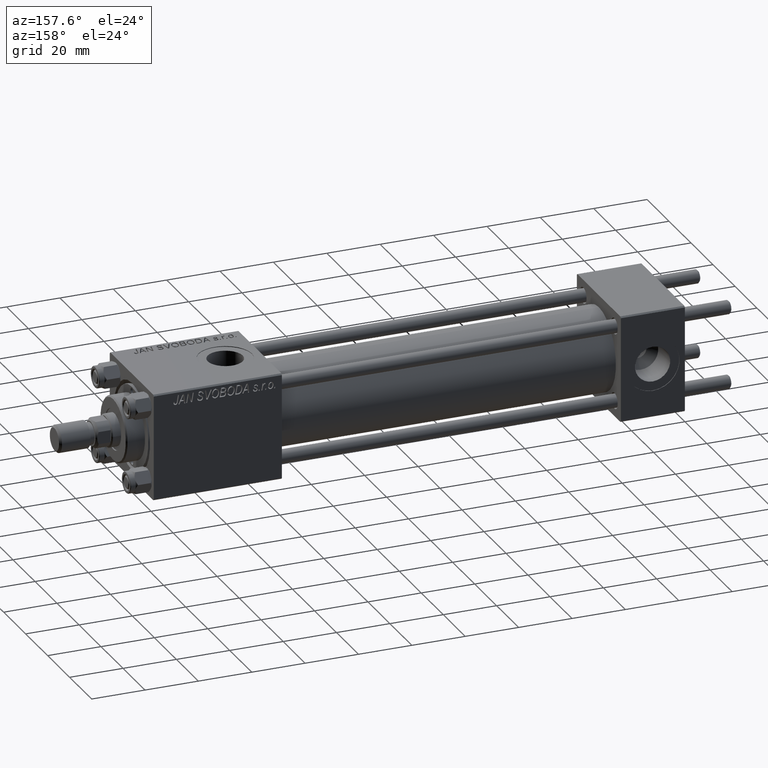
[diagram: clean part render]
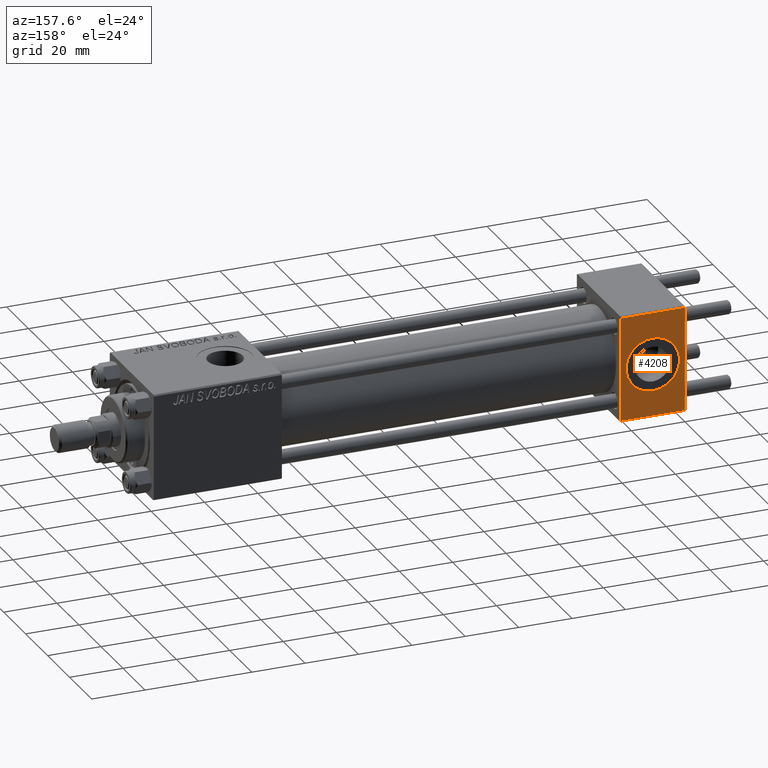
[diagram: same view with one face highlighted and labeled with its STEP entity id]
A machine part, auxiliary view. The second image highlights one B-rep face of the part: STEP entity #4208.
In plain terms, the highlighted planar face has unit normal (0, 1, 0).
Its self-contained STEP definition (entity closure, byte-faithful):
#318 = DIRECTION ( 'NONE',  ( -1.000000000000000000, 0.000000000000000000, 0.000000000000000000 ) ) ;
#347 = VERTEX_POINT ( 'NONE', #44162 ) ;
#963 = CARTESIAN_POINT ( 'NONE',  ( 12.00000000000000000, 20.00000000000000000, 10.00000000000000000 ) ) ;
#1123 = CARTESIAN_POINT ( 'NONE',  ( 24.00000000000000000, 20.00000000000000000, 20.00000000000000000 ) ) ;
#1690 = ORIENTED_EDGE ( 'NONE', *, *, #25828, .T. ) ;
#2213 = DIRECTION ( 'NONE',  ( 0.000000000000000000, -0.000000000000000000, 1.000000000000000000 ) ) ;
#2808 = CARTESIAN_POINT ( 'NONE',  ( 0.000000000000000000, 20.00000000000000000, -19.50000000000002132 ) ) ;
#3187 = DIRECTION ( 'NONE',  ( 0.000000000000000000, 0.000000000000000000, 1.000000000000000000 ) ) ;
#4208 = ADVANCED_FACE ( 'NONE', ( #6037, #21599 ), #22351, .T. ) ;
#6037 = FACE_BOUND ( 'NONE', #35716, .T. ) ;
#6675 = VERTEX_POINT ( 'NONE', #9116 ) ;
#7723 = CARTESIAN_POINT ( 'NONE',  ( 24.00000000000000000, 20.00000000000000000, 19.49999999999999289 ) ) ;
#8218 = LINE ( 'NONE', #28333, #17304 ) ;
#9116 = CARTESIAN_POINT ( 'NONE',  ( 24.00000000000000000, 20.00000000000000000, -19.50000000000002132 ) ) ;
#9301 = LINE ( 'NONE', #13130, #47828 ) ;
#11857 = CARTESIAN_POINT ( 'NONE',  ( 12.00000000000000000, 20.00000000000000000, 0.000000000000000000 ) ) ;
#13130 = CARTESIAN_POINT ( 'NONE',  ( 24.00000000000000000, 20.00000000000000000, 19.49999999999999289 ) ) ;
#14851 = DIRECTION ( 'NONE',  ( 0.000000000000000000, 0.000000000000000000, -1.000000000000000000 ) ) ;
#15012 = EDGE_CURVE ( 'NONE', #20245, #42216, #40160, .T. ) ;
#15811 = VECTOR ( 'NONE', #48248, 1000.000000000000000 ) ;
#15879 = DIRECTION ( 'NONE',  ( 0.000000000000000000, 1.000000000000000000, 0.000000000000000000 ) ) ;
#15963 = VERTEX_POINT ( 'NONE', #2808 ) ;
#16980 = EDGE_CURVE ( 'NONE', #6675, #15963, #8218, .T. ) ;
#17304 = VECTOR ( 'NONE', #318, 1000.000000000000000 ) ;
#19845 = CARTESIAN_POINT ( 'NONE',  ( 12.00000000000000178, 20.00000000000000000, -10.00000000000000000 ) ) ;
#20245 = VERTEX_POINT ( 'NONE', #19845 ) ;
#21027 = DIRECTION ( 'NONE',  ( 1.000000000000000000, 0.000000000000000000, 0.000000000000000000 ) ) ;
#21599 = FACE_OUTER_BOUND ( 'NONE', #34685, .T. ) ;
#22351 = PLANE ( 'NONE',  #42268 ) ;
#22424 = CIRCLE ( 'NONE', #42754, 10.00000000000000000 ) ;
#22731 = LINE ( 'NONE', #38287, #39997 ) ;
#23751 = CARTESIAN_POINT ( 'NONE',  ( 12.00000000000000000, 20.00000000000000000, 0.000000000000000000 ) ) ;
#25828 = EDGE_CURVE ( 'NONE', #347, #32733, #9301, .T. ) ;
#26396 = ORIENTED_EDGE ( 'NONE', *, *, #39218, .F. ) ;
#27398 = DIRECTION ( 'NONE',  ( 0.000000000000000000, 1.000000000000000000, 0.000000000000000000 ) ) ;
#28333 = CARTESIAN_POINT ( 'NONE',  ( 24.00000000000000000, 20.00000000000000000, -19.50000000000002132 ) ) ;
#30381 = EDGE_CURVE ( 'NONE', #347, #15963, #22731, .T. ) ;
#32733 = VERTEX_POINT ( 'NONE', #7723 ) ;
#34685 = EDGE_LOOP ( 'NONE', ( #37938, #39793, #48010, #1690 ) ) ;
#35716 = EDGE_LOOP ( 'NONE', ( #26396, #36966 ) ) ;
#36966 = ORIENTED_EDGE ( 'NONE', *, *, #15012, .F. ) ;
#37116 = EDGE_CURVE ( 'NONE', #32733, #6675, #40377, .T. ) ;
#37142 = CARTESIAN_POINT ( 'NONE',  ( 24.00000000000000000, 20.00000000000000000, 20.00000000000000000 ) ) ;
#37898 = DIRECTION ( 'NONE',  ( -0.000000000000000000, 1.000000000000000000, 0.000000000000000000 ) ) ;
#37938 = ORIENTED_EDGE ( 'NONE', *, *, #37116, .T. ) ;
#38287 = CARTESIAN_POINT ( 'NONE',  ( 0.000000000000000000, 20.00000000000000000, 20.00000000000000000 ) ) ;
#39218 = EDGE_CURVE ( 'NONE', #42216, #20245, #22424, .T. ) ;
#39793 = ORIENTED_EDGE ( 'NONE', *, *, #16980, .T. ) ;
#39997 = VECTOR ( 'NONE', #14851, 1000.000000000000000 ) ;
#40160 = CIRCLE ( 'NONE', #45028, 10.00000000000000000 ) ;
#40377 = LINE ( 'NONE', #1123, #15811 ) ;
#42216 = VERTEX_POINT ( 'NONE', #963 ) ;
#42268 = AXIS2_PLACEMENT_3D ( 'NONE', #37142, #37898, #2213 ) ;
#42754 = AXIS2_PLACEMENT_3D ( 'NONE', #11857, #27398, #3187 ) ;
#44162 = CARTESIAN_POINT ( 'NONE',  ( 0.000000000000000000, 20.00000000000000000, 19.49999999999999289 ) ) ;
#45028 = AXIS2_PLACEMENT_3D ( 'NONE', #23751, #15879, #46953 ) ;
#46953 = DIRECTION ( 'NONE',  ( 0.000000000000000000, 0.000000000000000000, 1.000000000000000000 ) ) ;
#47828 = VECTOR ( 'NONE', #21027, 1000.000000000000000 ) ;
#48010 = ORIENTED_EDGE ( 'NONE', *, *, #30381, .F. ) ;
#48248 = DIRECTION ( 'NONE',  ( 0.000000000000000000, 0.000000000000000000, -1.000000000000000000 ) ) ;